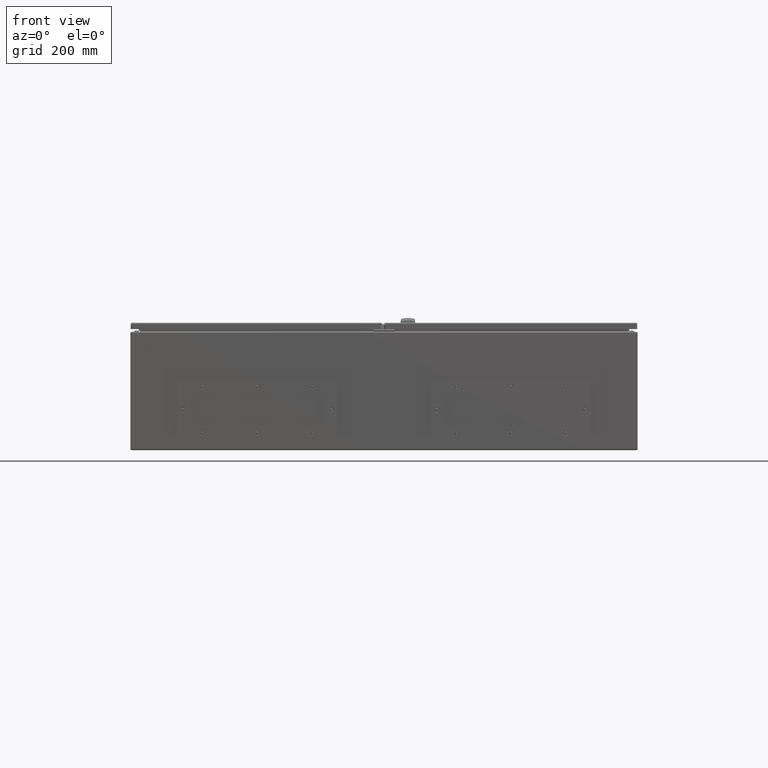
[diagram: clean part render]
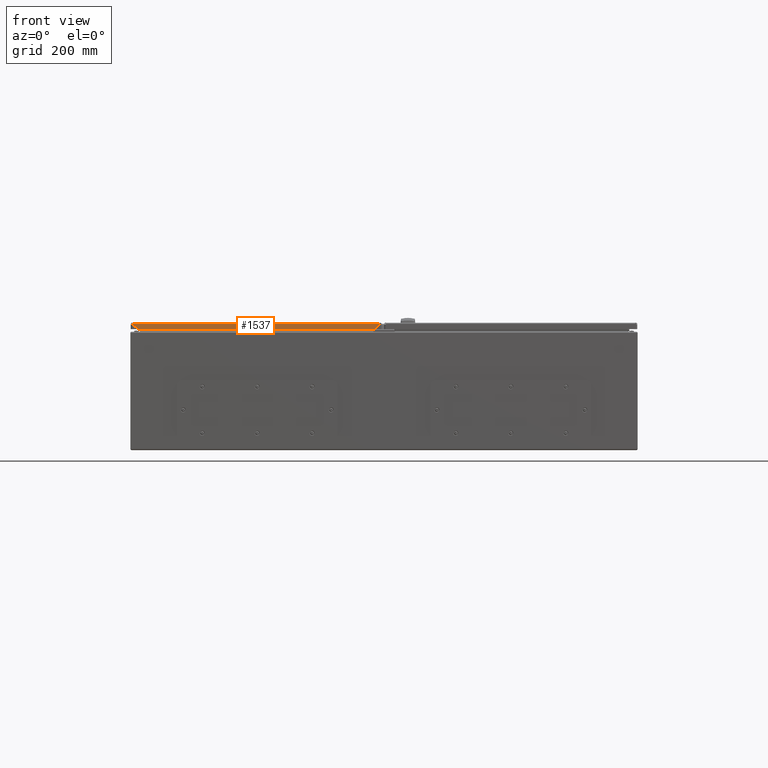
[diagram: same view with one face highlighted and labeled with its STEP entity id]
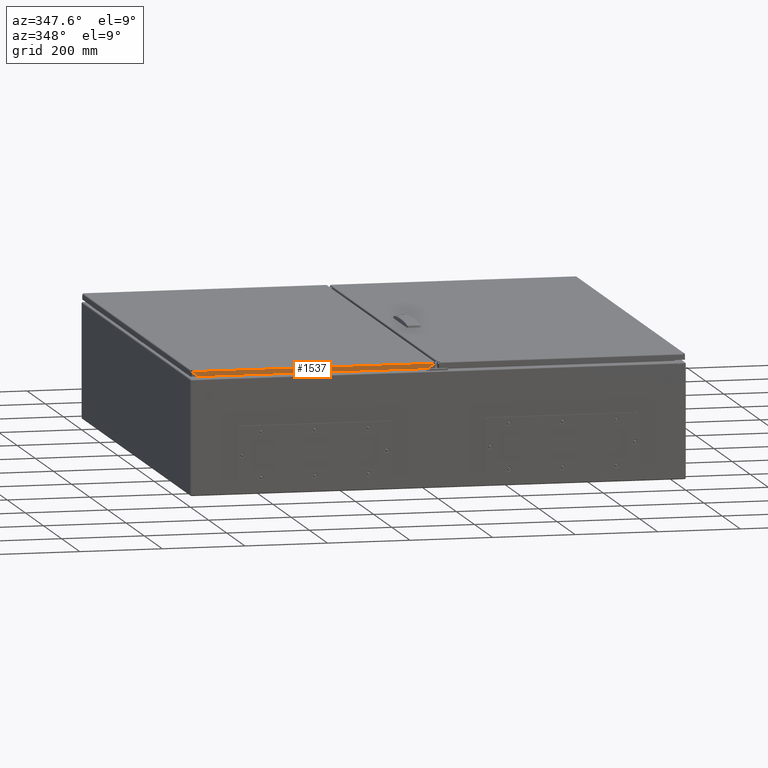
[diagram: same view with one face highlighted and labeled with its STEP entity id]
A machine part, front view. The second image highlights one B-rep face of the part: STEP entity #1537.
A second angle (auxiliary view) of the same face is appended — the face is thin or edge-on in the first view.
In plain terms, the highlighted planar face has unit normal (-0, 1, 0).
Its self-contained STEP definition (entity closure, byte-faithful):
#1537 = ADVANCED_FACE ( 'NONE', ( #8059 ), #85418, .F. ) ;
#6016 = AXIS2_PLACEMENT_3D ( 'NONE', #35344, #35109, #34242 ) ;
#7157 = AXIS2_PLACEMENT_3D ( 'NONE', #50539, #50952, #50957 ) ;
#8059 = FACE_OUTER_BOUND ( 'NONE', #95752, .T. ) ;
#11531 = VERTEX_POINT ( 'NONE', #38878 ) ;
#11593 = VERTEX_POINT ( 'NONE', #38037 ) ;
#11613 = VERTEX_POINT ( 'NONE', #38239 ) ;
#11711 = VERTEX_POINT ( 'NONE', #38449 ) ;
#11874 = VERTEX_POINT ( 'NONE', #37717 ) ;
#11896 = VERTEX_POINT ( 'NONE', #38118 ) ;
#11943 = VERTEX_POINT ( 'NONE', #37959 ) ;
#26674 = CARTESIAN_POINT ( 'NONE',  ( 277.4999999999999400, 598.4999999999997700, 8.250000000000202500 ) ) ;
#27840 = CARTESIAN_POINT ( 'NONE',  ( 282.1286796564403400, 598.4999999999997700, 3.621320343559886200 ) ) ;
#27878 = CARTESIAN_POINT ( 'NONE',  ( 281.6519237886465100, 598.4999999999997700, 3.000000000000002700 ) ) ;
#34242 = DIRECTION ( 'NONE',  ( 1.000000000000000000, 0.0000000000000000000, 1.445602896647337900E-016 ) ) ;
#34690 = DIRECTION ( 'NONE',  ( 1.797932023684470900E-016, 3.491483361109382100E-015, -1.000000000000000000 ) ) ;
#34741 = CARTESIAN_POINT ( 'NONE',  ( -292.7499999999998300, 598.4999999999997700, 8.250000000000202500 ) ) ;
#34796 = CARTESIAN_POINT ( 'NONE',  ( -319.7499999999997700, 598.4999999999998900, 3.000000000000113700 ) ) ;
#34888 = DIRECTION ( 'NONE',  ( 1.000000000000000000, -1.797932023684464700E-016, 0.0000000000000000000 ) ) ;
#35109 = DIRECTION ( 'NONE',  ( -1.797932023684464500E-016, -1.000000000000000000, -3.491483361109382100E-015 ) ) ;
#35344 = CARTESIAN_POINT ( 'NONE',  ( 284.2500000000000000, 598.4999999999997700, 1.500000000000278900 ) ) ;
#37717 = CARTESIAN_POINT ( 'NONE',  ( -304.1286796564403400, 598.4999999999998900, 3.621320343559886200 ) ) ;
#37959 = CARTESIAN_POINT ( 'NONE',  ( -299.5000000000000600, 598.4999999999997700, 8.250000000000312600 ) ) ;
#38037 = CARTESIAN_POINT ( 'NONE',  ( -303.6519237886465700, 598.4999999999998900, 3.000000000000113700 ) ) ;
#38118 = CARTESIAN_POINT ( 'NONE',  ( -292.7499999999998300, 598.4999999999997700, 15.00000000000023400 ) ) ;
#38239 = CARTESIAN_POINT ( 'NONE',  ( 270.7500000000004000, 598.4999999999997700, 8.250000000000202500 ) ) ;
#38449 = CARTESIAN_POINT ( 'NONE',  ( 270.7500000000004000, 598.4999999999996600, 15.00000000000023400 ) ) ;
#38878 = CARTESIAN_POINT ( 'NONE',  ( -292.7499999999998300, 598.4999999999997700, 8.250000000000202500 ) ) ;
#41293 = AXIS2_PLACEMENT_3D ( 'NONE', #85455, #85470, #84950 ) ;
#49764 = CARTESIAN_POINT ( 'NONE',  ( 284.2500000000000000, 598.4999999999997700, 1.500000000000278900 ) ) ;
#49931 = DIRECTION ( 'NONE',  ( -0.7071067811865535700, -2.341718568434447900E-015, 0.7071067811865415800 ) ) ;
#50060 = CARTESIAN_POINT ( 'NONE',  ( 277.4999999999999400, 598.4999999999997700, 8.250000000000202500 ) ) ;
#50073 = DIRECTION ( 'NONE',  ( -1.000000000000000000, 1.797932023684470900E-016, -1.797932023684464700E-016 ) ) ;
#50412 = CARTESIAN_POINT ( 'NONE',  ( -319.7500000000000000, 598.4999999999997700, 15.00000000000012400 ) ) ;
#50539 = CARTESIAN_POINT ( 'NONE',  ( -306.2499999999999400, 598.4999999999998900, 1.500000000000278900 ) ) ;
#50952 = DIRECTION ( 'NONE',  ( -1.797932023684464500E-016, -1.000000000000000000, -3.491483361109382100E-015 ) ) ;
#50957 = DIRECTION ( 'NONE',  ( 1.000000000000000000, 0.0000000000000000000, 1.445602896647337900E-016 ) ) ;
#50974 = DIRECTION ( 'NONE',  ( -1.000000000000000000, 1.797932023684470900E-016, -1.797932023684464700E-016 ) ) ;
#52224 = EDGE_CURVE ( 'NONE', #58407, #11613, #89582, .T. ) ;
#52285 = EDGE_CURVE ( 'NONE', #11711, #11896, #89746, .T. ) ;
#52323 = EDGE_CURVE ( 'NONE', #58418, #58407, #89873, .T. ) ;
#52351 = EDGE_CURVE ( 'NONE', #11593, #11874, #89928, .T. ) ;
#52393 = EDGE_CURVE ( 'NONE', #11613, #11711, #90040, .T. ) ;
#52402 = EDGE_CURVE ( 'NONE', #11531, #11943, #90046, .T. ) ;
#52411 = EDGE_CURVE ( 'NONE', #11943, #11874, #90094, .T. ) ;
#52437 = EDGE_CURVE ( 'NONE', #11593, #58416, #90170, .T. ) ;
#52451 = EDGE_CURVE ( 'NONE', #58418, #58416, #90214, .T. ) ;
#52462 = EDGE_CURVE ( 'NONE', #11896, #11531, #90248, .T. ) ;
#58082 = DIRECTION ( 'NONE',  ( -1.000000000000000000, 1.797932023683896700E-016, 1.626795531059634800E-014 ) ) ;
#58407 = VERTEX_POINT ( 'NONE', #26674 ) ;
#58416 = VERTEX_POINT ( 'NONE', #27878 ) ;
#58418 = VERTEX_POINT ( 'NONE', #27840 ) ;
#59021 = DIRECTION ( 'NONE',  ( -1.797932023684470900E-016, -3.491483361109382100E-015, 1.000000000000000000 ) ) ;
#59361 = CARTESIAN_POINT ( 'NONE',  ( -299.5000000000000600, 598.4999999999997700, 8.250000000000312600 ) ) ;
#59414 = DIRECTION ( 'NONE',  ( -0.7071067811865415800, 2.595984553646437400E-015, -0.7071067811865535700 ) ) ;
#60463 = CARTESIAN_POINT ( 'NONE',  ( 270.7500000000004000, 598.4999999999997700, 8.250000000000202500 ) ) ;
#60600 = CARTESIAN_POINT ( 'NONE',  ( -306.2499999999999400, 598.4999999999998900, 1.500000000000278900 ) ) ;
#76186 = ORIENTED_EDGE ( 'NONE', *, *, #52437, .F. ) ;
#76192 = ORIENTED_EDGE ( 'NONE', *, *, #52351, .T. ) ;
#76198 = ORIENTED_EDGE ( 'NONE', *, *, #52411, .F. ) ;
#76204 = ORIENTED_EDGE ( 'NONE', *, *, #52451, .T. ) ;
#76208 = ORIENTED_EDGE ( 'NONE', *, *, #52323, .F. ) ;
#76212 = ORIENTED_EDGE ( 'NONE', *, *, #52224, .F. ) ;
#76216 = ORIENTED_EDGE ( 'NONE', *, *, #52393, .F. ) ;
#76220 = ORIENTED_EDGE ( 'NONE', *, *, #52285, .F. ) ;
#76224 = ORIENTED_EDGE ( 'NONE', *, *, #52462, .F. ) ;
#76228 = ORIENTED_EDGE ( 'NONE', *, *, #52402, .F. ) ;
#84950 = DIRECTION ( 'NONE',  ( 1.000000000000000000, -1.797932023684470900E-016, 1.797932023684464700E-016 ) ) ;
#85418 = PLANE ( 'NONE',  #41293 ) ;
#85455 = CARTESIAN_POINT ( 'NONE',  ( -319.7499999999997700, 598.5000000000040900, -1206.000000000000000 ) ) ;
#85470 = DIRECTION ( 'NONE',  ( -1.797932023684464700E-016, -1.000000000000000000, -3.491483361109382100E-015 ) ) ;
#89582 = LINE ( 'NONE', #50060, #89584 ) ;
#89584 = VECTOR ( 'NONE', #50073, 1000.000000000000000 ) ;
#89746 = LINE ( 'NONE', #50412, #89748 ) ;
#89748 = VECTOR ( 'NONE', #50974, 1000.000000000000000 ) ;
#89869 = VECTOR ( 'NONE', #49931, 1000.000000000000000 ) ;
#89873 = LINE ( 'NONE', #49764, #89869 ) ;
#89928 = CIRCLE ( 'NONE', #7157, 3.000000000000002700 ) ;
#90040 = LINE ( 'NONE', #60463, #90042 ) ;
#90042 = VECTOR ( 'NONE', #59021, 1000.000000000000000 ) ;
#90046 = LINE ( 'NONE', #59361, #90054 ) ;
#90054 = VECTOR ( 'NONE', #58082, 1000.000000000000000 ) ;
#90088 = VECTOR ( 'NONE', #59414, 999.9999999999998900 ) ;
#90094 = LINE ( 'NONE', #60600, #90088 ) ;
#90150 = VECTOR ( 'NONE', #34888, 1000.000000000000000 ) ;
#90170 = LINE ( 'NONE', #34796, #90150 ) ;
#90214 = CIRCLE ( 'NONE', #6016, 3.000000000000002700 ) ;
#90248 = LINE ( 'NONE', #34741, #90250 ) ;
#90250 = VECTOR ( 'NONE', #34690, 1000.000000000000000 ) ;
#95752 = EDGE_LOOP ( 'NONE', ( #76186, #76192, #76198, #76228, #76224, #76220, #76216, #76212, #76208, #76204 ) ) ;